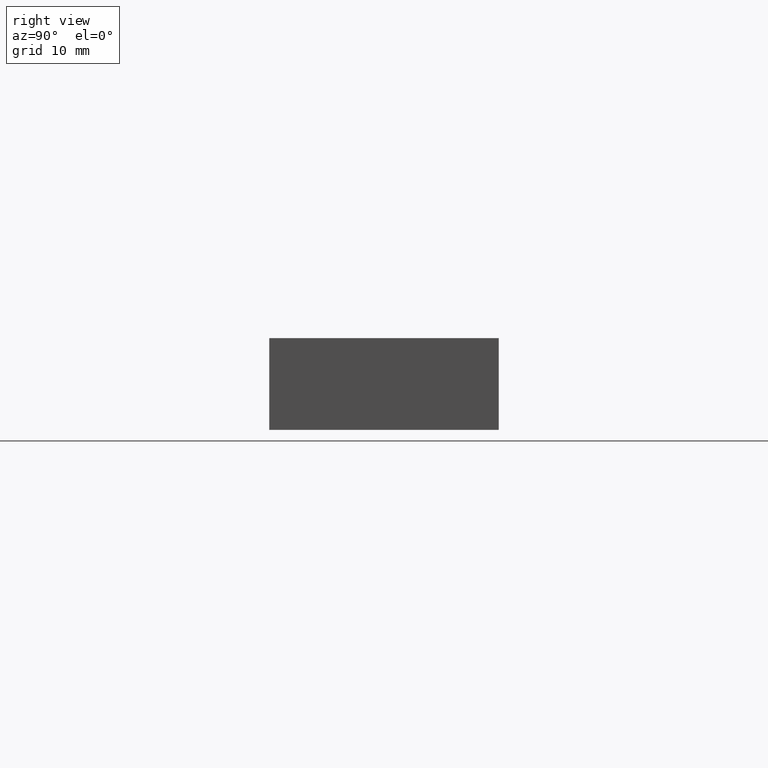
[diagram: clean part render]
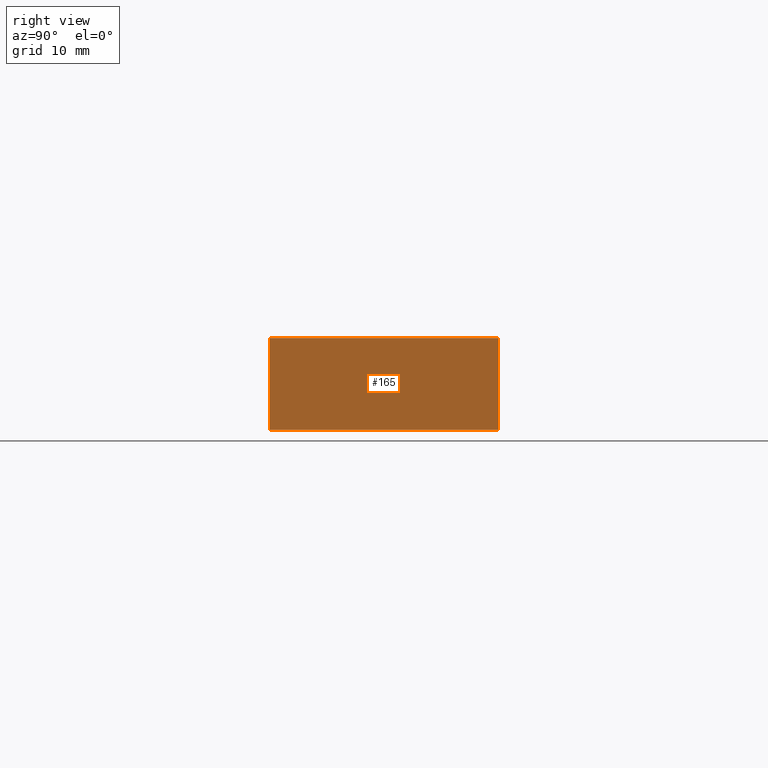
[diagram: same view with one face highlighted and labeled with its STEP entity id]
A machine part, right view. The second image highlights one B-rep face of the part: STEP entity #165.
In plain terms, the highlighted planar face has unit normal (1, 0, 0).
Its self-contained STEP definition (entity closure, byte-faithful):
#19=FACE_OUTER_BOUND('',#28,.T.);
#28=EDGE_LOOP('',(#126,#127,#128,#129));
#38=LINE('',#256,#59);
#45=LINE('',#269,#66);
#46=LINE('',#272,#67);
#47=LINE('',#273,#68);
#59=VECTOR('',#211,10.);
#66=VECTOR('',#222,10.);
#67=VECTOR('',#225,10.);
#68=VECTOR('',#226,10.);
#80=VERTEX_POINT('',#253);
#81=VERTEX_POINT('',#255);
#85=VERTEX_POINT('',#267);
#86=VERTEX_POINT('',#271);
#94=EDGE_CURVE('',#81,#80,#38,.T.);
#101=EDGE_CURVE('',#80,#85,#45,.T.);
#102=EDGE_CURVE('',#85,#86,#46,.T.);
#103=EDGE_CURVE('',#81,#86,#47,.T.);
#126=ORIENTED_EDGE('',*,*,#102,.T.);
#127=ORIENTED_EDGE('',*,*,#103,.F.);
#128=ORIENTED_EDGE('',*,*,#94,.T.);
#129=ORIENTED_EDGE('',*,*,#101,.T.);
#156=PLANE('',#197);
#165=ADVANCED_FACE('',(#19),#156,.T.);
#197=AXIS2_PLACEMENT_3D('',#270,#223,#224);
#211=DIRECTION('',(0.,1.,0.));
#222=DIRECTION('',(0.,0.,1.));
#223=DIRECTION('center_axis',(1.,0.,0.));
#224=DIRECTION('ref_axis',(0.,0.,-1.));
#225=DIRECTION('',(0.,-1.,0.));
#226=DIRECTION('',(0.,0.,1.));
#253=CARTESIAN_POINT('',(37.5,12.5,-5.));
#255=CARTESIAN_POINT('',(37.5,-12.5,-5.));
#256=CARTESIAN_POINT('',(37.5,-12.5,-5.));
#267=CARTESIAN_POINT('',(37.5,12.5,5.));
#269=CARTESIAN_POINT('',(37.5,12.5,0.));
#270=CARTESIAN_POINT('Origin',(37.5,12.5,0.));
#271=CARTESIAN_POINT('',(37.5,-12.5,5.));
#272=CARTESIAN_POINT('',(37.5,-12.5,5.));
#273=CARTESIAN_POINT('',(37.5,-12.5,0.));